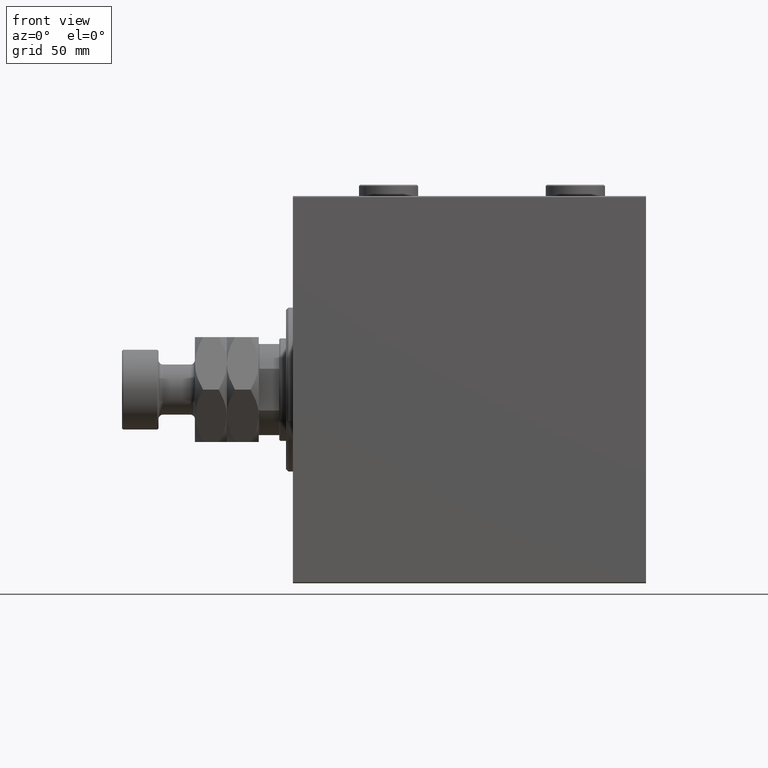
[diagram: clean part render]
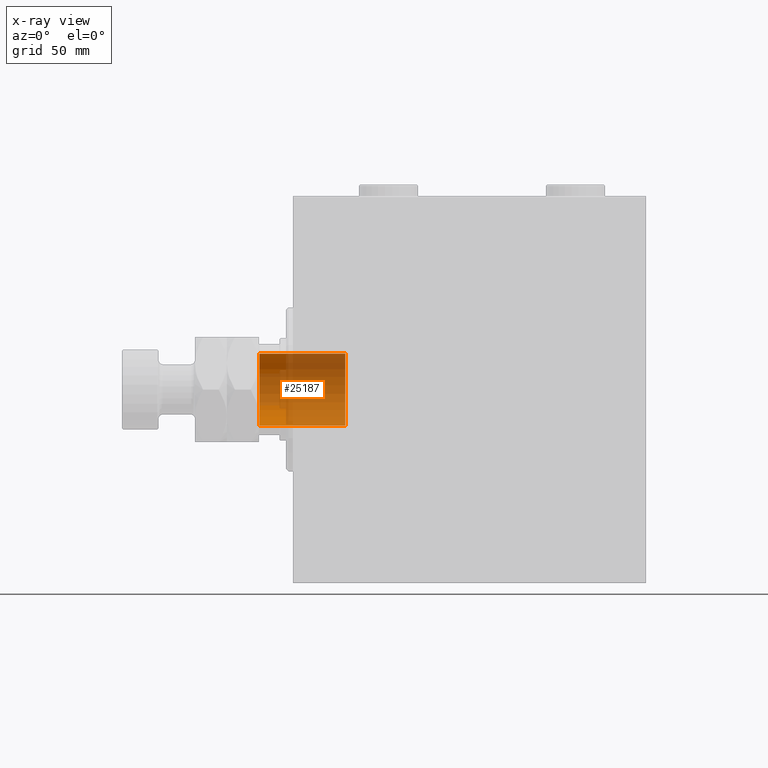
[diagram: x-ray — body ghosted, one internal face saturated and labeled with its STEP entity id]
A machine part, front view, then the same camera in x-ray: the body is ghosted and one INTERNAL B-rep face — a face not visible from any outside direction — is saturated and labeled: STEP entity #25187.
In plain terms, the highlighted cylindrical surface (edge-blend (fillet) strip) has radius 15.75 mm, axis along (-1, 0, 0).
Its self-contained STEP definition (entity closure, byte-faithful):
#2316 = DIRECTION ( 'NONE',  ( -0.000000000000000000, -0.000000000000000000, 1.000000000000000000 ) ) ;
#2489 = DIRECTION ( 'NONE',  ( 0.000000000000000000, 0.000000000000000000, 1.000000000000000000 ) ) ;
#3186 = CARTESIAN_POINT ( 'NONE',  ( 15.74999999999999289, 0.000000000000000000, 143.6999999999999602 ) ) ;
#3928 = CARTESIAN_POINT ( 'NONE',  ( -15.74999999999999289, 1.928818708657080556E-15, 144.0000000000000284 ) ) ;
#4437 = CARTESIAN_POINT ( 'NONE',  ( 15.74999999999999289, 0.000000000000000000, 144.0000000000000284 ) ) ;
#4950 = AXIS2_PLACEMENT_3D ( 'NONE', #17525, #2316, #39184 ) ;
#6510 = DIRECTION ( 'NONE',  ( 1.000000000000000000, 0.000000000000000000, 0.000000000000000000 ) ) ;
#6999 = VERTEX_POINT ( 'NONE', #12883 ) ;
#9608 = ORIENTED_EDGE ( 'NONE', *, *, #23932, .F. ) ;
#10743 = CARTESIAN_POINT ( 'NONE',  ( 0.000000000000000000, 0.000000000000000000, 144.0000000000000284 ) ) ;
#12883 = CARTESIAN_POINT ( 'NONE',  ( -15.74999999999999289, 1.928818708657080556E-15, 143.6999999999999602 ) ) ;
#13854 = EDGE_CURVE ( 'NONE', #16303, #6999, #35920, .T. ) ;
#16303 = VERTEX_POINT ( 'NONE', #3186 ) ;
#16540 = ORIENTED_EDGE ( 'NONE', *, *, #41388, .T. ) ;
#17029 = VERTEX_POINT ( 'NONE', #45720 ) ;
#17525 = CARTESIAN_POINT ( 'NONE',  ( 0.000000000000000000, 0.000000000000000000, 106.0000000000000142 ) ) ;
#18462 = DIRECTION ( 'NONE',  ( -0.000000000000000000, -0.000000000000000000, 1.000000000000000000 ) ) ;
#18735 = EDGE_LOOP ( 'NONE', ( #34173, #9608, #16540, #46727 ) ) ;
#19916 = DIRECTION ( 'NONE',  ( -0.000000000000000000, -0.000000000000000000, 1.000000000000000000 ) ) ;
#23932 = EDGE_CURVE ( 'NONE', #17029, #35072, #39122, .T. ) ;
#25187 = ADVANCED_FACE ( 'NONE', ( #43827 ), #39323, .F. ) ;
#25269 = DIRECTION ( 'NONE',  ( -0.000000000000000000, -0.000000000000000000, 1.000000000000000000 ) ) ;
#25919 = VECTOR ( 'NONE', #19916, 1000.000000000000000 ) ;
#29306 = AXIS2_PLACEMENT_3D ( 'NONE', #10743, #25269, #32647 ) ;
#29581 = VECTOR ( 'NONE', #18462, 1000.000000000000000 ) ;
#32647 = DIRECTION ( 'NONE',  ( 1.000000000000000000, 0.000000000000000000, 0.000000000000000000 ) ) ;
#34173 = ORIENTED_EDGE ( 'NONE', *, *, #38607, .F. ) ;
#35072 = VERTEX_POINT ( 'NONE', #40432 ) ;
#35920 = CIRCLE ( 'NONE', #45029, 15.74999999999999289 ) ;
#36559 = LINE ( 'NONE', #3928, #29581 ) ;
#37063 = LINE ( 'NONE', #4437, #25919 ) ;
#38607 = EDGE_CURVE ( 'NONE', #35072, #6999, #36559, .T. ) ;
#39122 = CIRCLE ( 'NONE', #4950, 15.74999999999999289 ) ;
#39130 = CARTESIAN_POINT ( 'NONE',  ( 0.000000000000000000, 0.000000000000000000, 143.6999999999999602 ) ) ;
#39184 = DIRECTION ( 'NONE',  ( 1.000000000000000000, 0.000000000000000000, 0.000000000000000000 ) ) ;
#39323 = CYLINDRICAL_SURFACE ( 'NONE', #29306, 15.74999999999999289 ) ;
#40432 = CARTESIAN_POINT ( 'NONE',  ( -15.74999999999999289, 1.928818708657080556E-15, 106.0000000000000142 ) ) ;
#41388 = EDGE_CURVE ( 'NONE', #17029, #16303, #37063, .T. ) ;
#43827 = FACE_OUTER_BOUND ( 'NONE', #18735, .T. ) ;
#45029 = AXIS2_PLACEMENT_3D ( 'NONE', #39130, #2489, #6510 ) ;
#45720 = CARTESIAN_POINT ( 'NONE',  ( 15.74999999999999289, 0.000000000000000000, 106.0000000000000142 ) ) ;
#46727 = ORIENTED_EDGE ( 'NONE', *, *, #13854, .T. ) ;